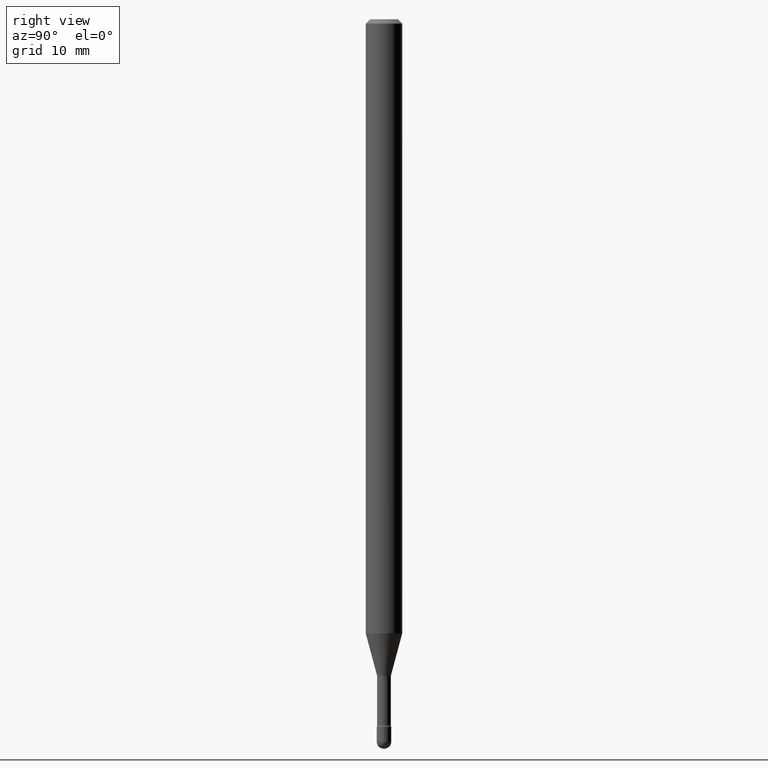
[diagram: clean part render]
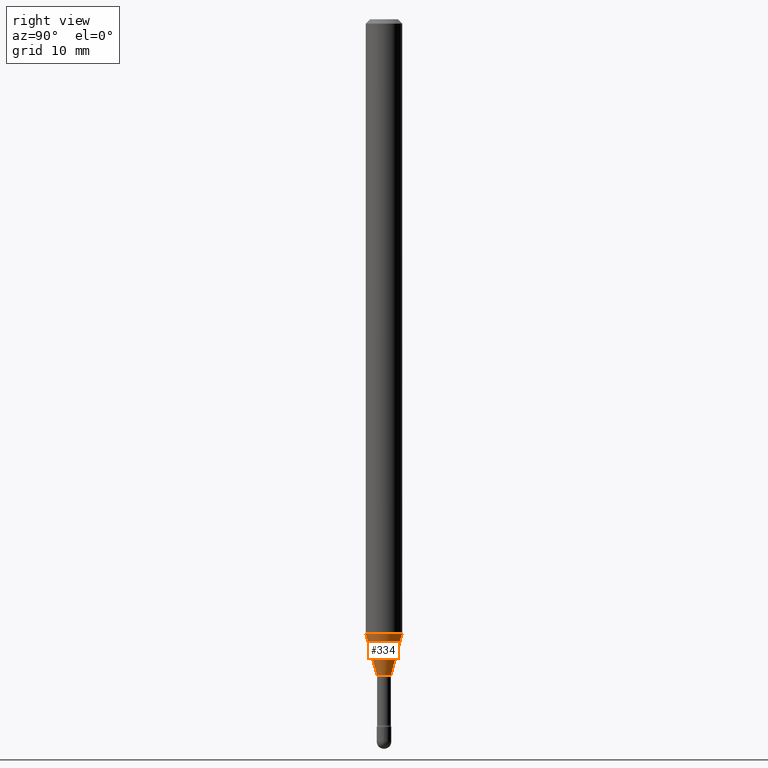
[diagram: same view with one face highlighted and labeled with its STEP entity id]
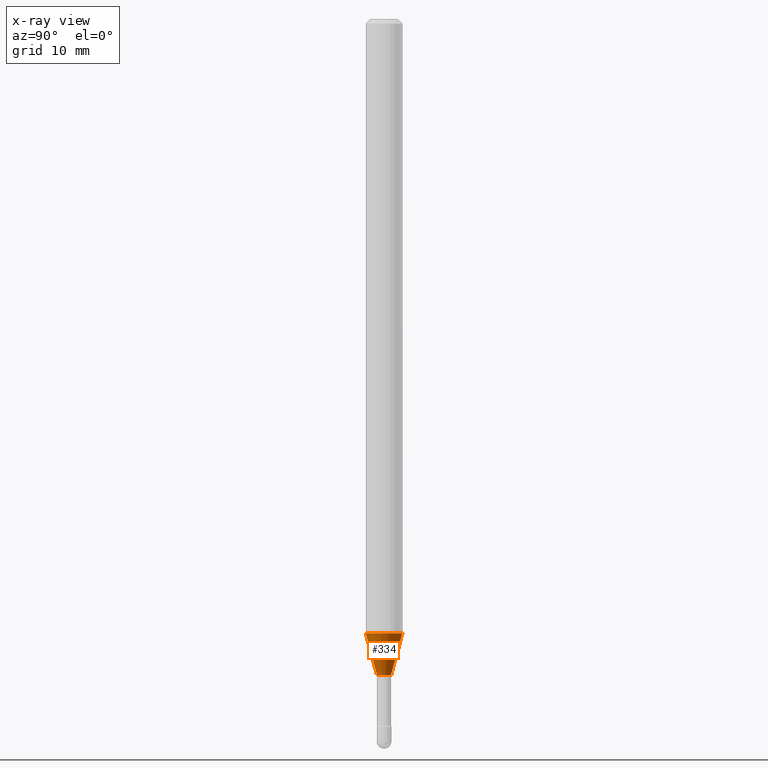
[diagram: x-ray of the same camera — body ghosted, the highlighted face saturated]
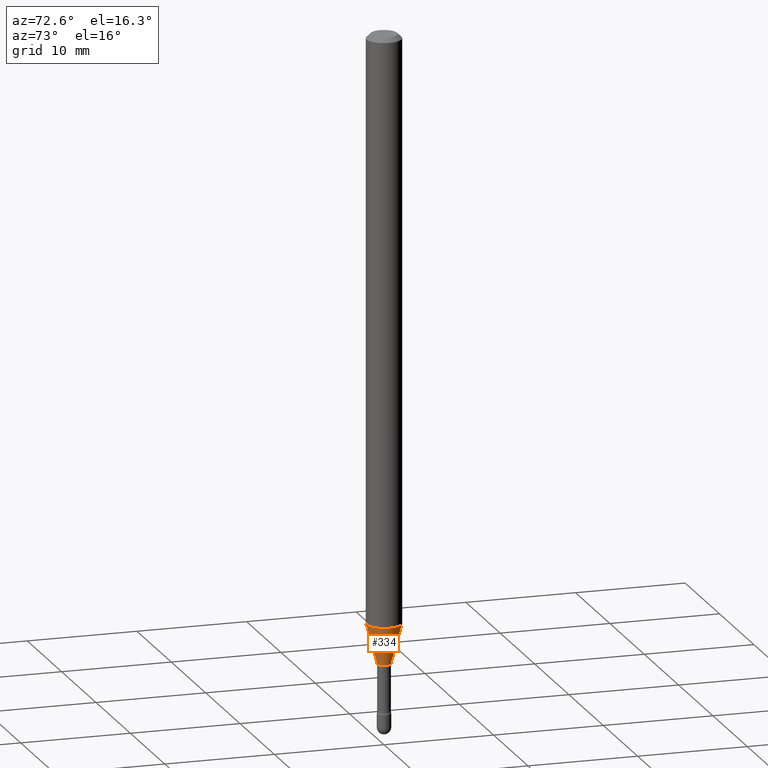
[diagram: same view with one face highlighted and labeled with its STEP entity id]
A machine part, right view. The second image highlights one B-rep face of the part: STEP entity #334.
The next image is the same camera in x-ray: the body ghosted, the highlighted face saturated — about 0% of this face is hidden behind the body in this view.
A second angle (auxiliary view) of the same face is appended — the face is thin or edge-on in the first view.
In plain terms, the highlighted conical surface has half-angle 15 deg.
Its self-contained STEP definition (entity closure, byte-faithful):
#5 = ORIENTED_EDGE ( 'NONE', *, *, #521, .T. ) ;
#8 = DIRECTION ( 'NONE',  ( -2.445458957061988148E-29, 3.491495443348071688E-15, 1.000000000000000000 ) ) ;
#47 = CARTESIAN_POINT ( 'NONE',  ( 5.146346147441865393E-29, -7.347677650363324032E-15, -2.104450018504814501 ) ) ;
#55 = CARTESIAN_POINT ( 'NONE',  ( 3.073492131224461599E-16, 0.02401111260565613401, -2.248092501787273267 ) ) ;
#64 = CARTESIAN_POINT ( 'NONE',  ( -1.676687031750188674E-16, -0.02401111260567184019, -2.248092501787273267 ) ) ;
#84 = LINE ( 'NONE', #337, #143 ) ;
#90 = DIRECTION ( 'NONE',  ( -2.445458957061988148E-29, 3.491495443348071688E-15, 1.000000000000000000 ) ) ;
#107 = DIRECTION ( 'NONE',  ( -6.982962677686265133E-15, -1.000000000000000000, 0.000000000000000000 ) ) ;
#109 = EDGE_LOOP ( 'NONE', ( #5, #494, #277, #358 ) ) ;
#121 = AXIS2_PLACEMENT_3D ( 'NONE', #279, #8, #402 ) ;
#129 = CIRCLE ( 'NONE', #219, 0.06250000000000000000 ) ;
#141 = CIRCLE ( 'NONE', #294, 0.02401111260566398883 ) ;
#143 = VECTOR ( 'NONE', #510, 39.37007874015748143 ) ;
#152 = LINE ( 'NONE', #369, #450 ) ;
#171 = EDGE_CURVE ( 'NONE', #386, #268, #129, .T. ) ;
#182 = CARTESIAN_POINT ( 'NONE',  ( 4.440892098501137935E-16, 0.06249999999999262396, -2.104450018504814501 ) ) ;
#219 = AXIS2_PLACEMENT_3D ( 'NONE', #47, #90, #302 ) ;
#247 = DIRECTION ( 'NONE',  ( -2.445458957061988148E-29, 3.491495443348071688E-15, 1.000000000000000000 ) ) ;
#256 = VERTEX_POINT ( 'NONE', #64 ) ;
#268 = VERTEX_POINT ( 'NONE', #182 ) ;
#277 = ORIENTED_EDGE ( 'NONE', *, *, #171, .F. ) ;
#279 = CARTESIAN_POINT ( 'NONE',  ( 5.497617944799579952E-29, -7.849204726215230524E-15, -2.248092501787273267 ) ) ;
#294 = AXIS2_PLACEMENT_3D ( 'NONE', #491, #247, #107 ) ;
#302 = DIRECTION ( 'NONE',  ( -6.982962677686265922E-15, -1.000000000000000000, 4.370956789862821150E-15 ) ) ;
#334 = ADVANCED_FACE ( 'NONE', ( #363 ), #393, .T. ) ;
#337 = CARTESIAN_POINT ( 'NONE',  ( -1.676687031750188674E-16, -0.02401111260567184019, -2.248092501787273267 ) ) ;
#350 = VERTEX_POINT ( 'NONE', #55 ) ;
#358 = ORIENTED_EDGE ( 'NONE', *, *, #565, .F. ) ;
#363 = FACE_OUTER_BOUND ( 'NONE', #109, .T. ) ;
#369 = CARTESIAN_POINT ( 'NONE',  ( 1.706092163947781318E-16, 0.02401111260565613748, -2.248092501787273267 ) ) ;
#386 = VERTEX_POINT ( 'NONE', #485 ) ;
#393 = CONICAL_SURFACE ( 'NONE', #121, 0.02401111260566398883, 0.2617993877991502960 ) ;
#402 = DIRECTION ( 'NONE',  ( -6.982962677686265133E-15, -1.000000000000000000, 0.000000000000000000 ) ) ;
#408 = DIRECTION ( 'NONE',  ( 1.839019923739600710E-15, 0.2588190451025250138, 0.9659258262890670910 ) ) ;
#435 = EDGE_CURVE ( 'NONE', #350, #268, #152, .T. ) ;
#450 = VECTOR ( 'NONE', #408, 39.37007874015748143 ) ;
#485 = CARTESIAN_POINT ( 'NONE',  ( -4.364351673553402948E-16, -0.06250000000000736911, -2.104450018504814057 ) ) ;
#491 = CARTESIAN_POINT ( 'NONE',  ( 5.497617944799579952E-29, -7.849204726215230524E-15, -2.248092501787273267 ) ) ;
#494 = ORIENTED_EDGE ( 'NONE', *, *, #435, .T. ) ;
#510 = DIRECTION ( 'NONE',  ( -1.807323732225330534E-15, -0.2588190451025182415, 0.9659258262890689783 ) ) ;
#521 = EDGE_CURVE ( 'NONE', #256, #350, #141, .T. ) ;
#565 = EDGE_CURVE ( 'NONE', #256, #386, #84, .T. ) ;